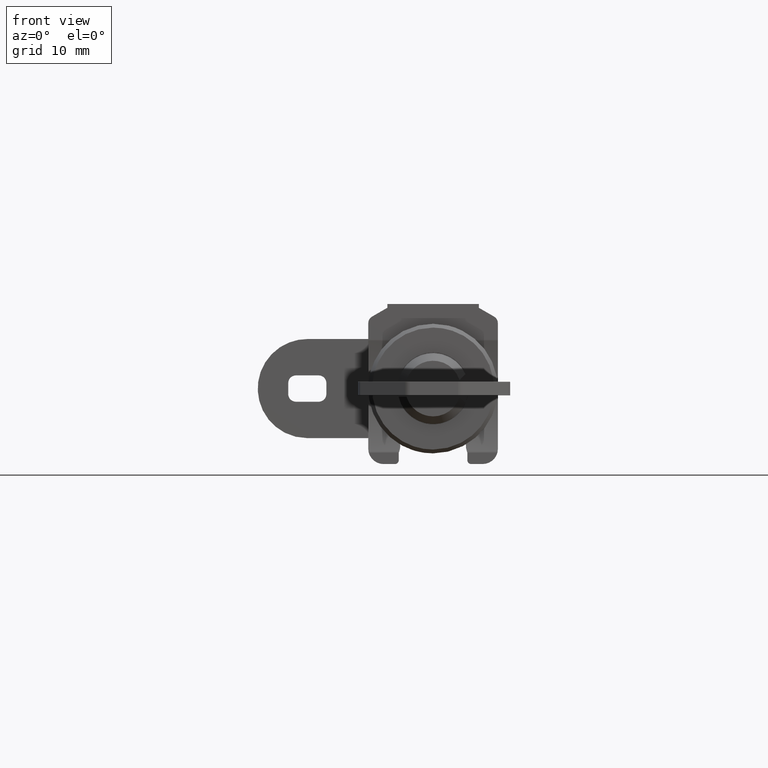
[diagram: clean part render]
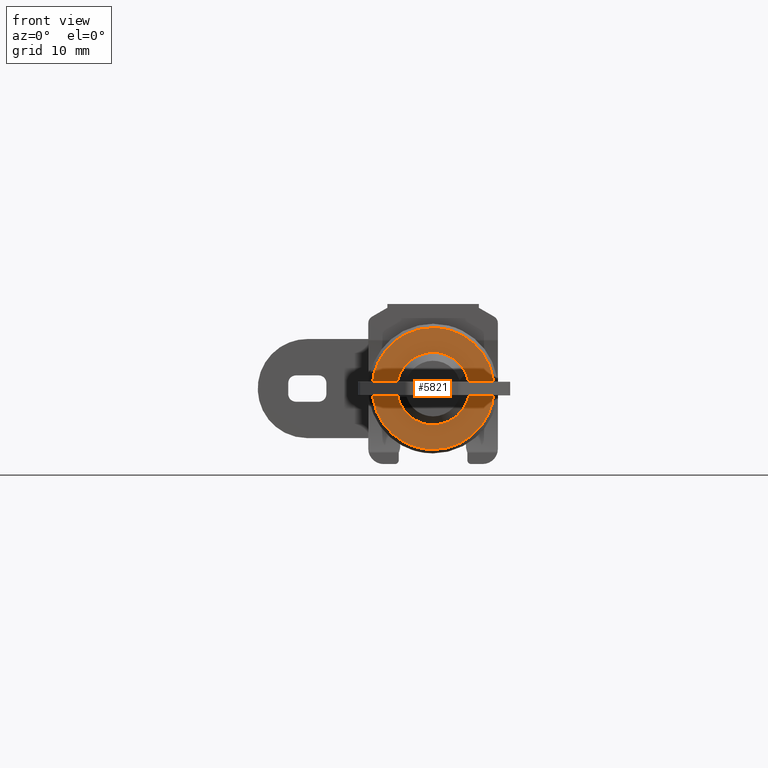
[diagram: same view with one face highlighted and labeled with its STEP entity id]
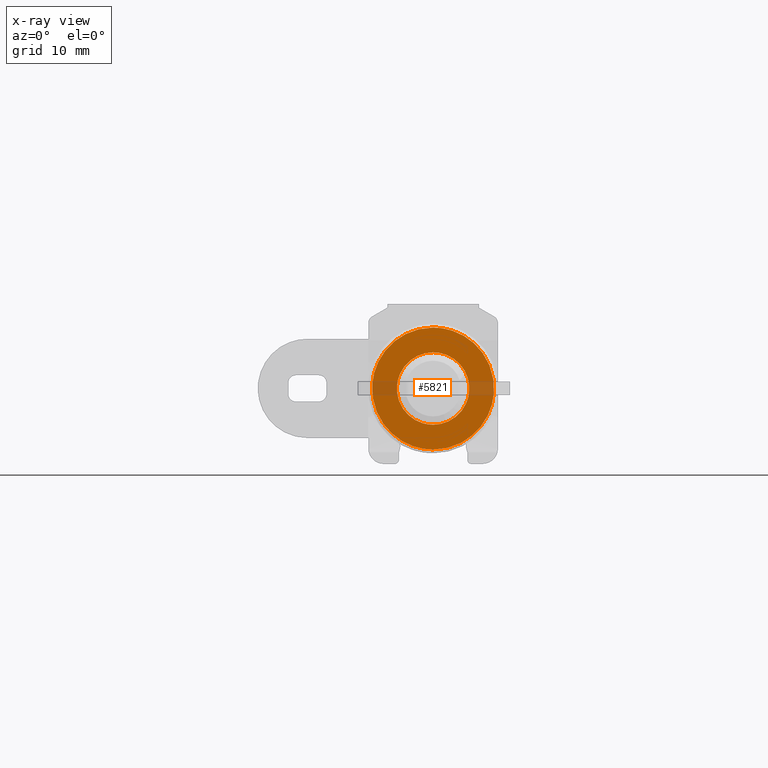
[diagram: x-ray of the same camera — body ghosted, the highlighted face saturated]
A machine part, front view. The second image highlights one B-rep face of the part: STEP entity #5821.
The next image is the same camera in x-ray: the body ghosted, the highlighted face saturated — about 9% of this face is hidden behind the body in this view.
In plain terms, the highlighted face is a freeform B-spline surface patch.
Its self-contained STEP definition (entity closure, byte-faithful):
#3328=CARTESIAN_POINT('',(-1.243454E-011,-4.716795250212233,-0.560662614596973));
#3329=VERTEX_POINT('',#3328);
#3330=CARTESIAN_POINT('',(-1.243450E-011,0.0,4.750000000150365));
#3331=VERTEX_POINT('',#3330);
#3332=CARTESIAN_POINT('',(-1.243454E-011,-4.716795250212233,-0.560662614596973));
#3333=CARTESIAN_POINT('',(-1.243450E-011,-4.750000000000000,-0.281314568325294));
#3334=CARTESIAN_POINT('',(-1.243450E-011,-4.750000000000000,1.503651E-010));
#3335=CARTESIAN_POINT('',(-1.243450E-011,-4.750000000000000,4.750000000150365));
#3336=CARTESIAN_POINT('',(-1.243450E-011,0.0,4.750000000150365));
#3344=(BOUNDED_CURVE()B_SPLINE_CURVE(2,(#3332,#3333,#3334,#3335,#3336),.UNSPECIFIED.,.F.,.U.)B_SPLINE_CURVE_WITH_KNOTS((3,2,3),(0.229562473506491,0.250000000000000,0.500000000000000),.UNSPECIFIED.)CURVE()GEOMETRIC_REPRESENTATION_ITEM()RATIONAL_B_SPLINE_CURVE((0.956026754169944,0.976055948322923,1.0,0.707106781186548,1.0))REPRESENTATION_ITEM(''));
#3345=EDGE_CURVE('',#3329,#3331,#3344,.T.);
#3347=CARTESIAN_POINT('',(-1.243445E-011,4.741140284503138,0.289980693751649));
#3348=VERTEX_POINT('',#3347);
#3349=CARTESIAN_POINT('',(-1.243450E-011,0.0,4.750000000150365));
#3350=CARTESIAN_POINT('',(-1.243450E-011,4.468353570772531,4.750000000150364));
#3351=CARTESIAN_POINT('',(-1.243445E-011,4.741140284503138,0.289980693751650));
#3359=(BOUNDED_CURVE()B_SPLINE_CURVE(2,(#3349,#3350,#3351),.UNSPECIFIED.,.F.,.U.)B_SPLINE_CURVE_WITH_KNOTS((3,3),(0.500000000000000,0.739332952720643),.UNSPECIFIED.)CURVE()GEOMETRIC_REPRESENTATION_ITEM()RATIONAL_B_SPLINE_CURVE((1.0,0.719604004438092,0.976072021267191))REPRESENTATION_ITEM(''));
#3360=EDGE_CURVE('',#3331,#3348,#3359,.T.);
#3427=CARTESIAN_POINT('',(-1.243450E-011,0.0,-4.749999999849635));
#3428=VERTEX_POINT('',#3427);
#3429=CARTESIAN_POINT('',(-1.243450E-011,0.0,-4.749999999849635));
#3430=CARTESIAN_POINT('',(-1.243450E-011,-4.218828998038886,-4.749999999849635));
#3431=CARTESIAN_POINT('',(-1.243454E-011,-4.716795250212233,-0.560662614596973));
#3439=(BOUNDED_CURVE()B_SPLINE_CURVE(2,(#3429,#3430,#3431),.UNSPECIFIED.,.F.,.U.)B_SPLINE_CURVE_WITH_KNOTS((3,3),(0.0,0.229562473506491),.UNSPECIFIED.)CURVE()GEOMETRIC_REPRESENTATION_ITEM()RATIONAL_B_SPLINE_CURVE((1.0,0.731050832863624,0.956026754169944))REPRESENTATION_ITEM(''));
#3440=EDGE_CURVE('',#3428,#3329,#3439,.T.);
#3474=CARTESIAN_POINT('',(-1.243445E-011,4.741140284503138,0.289980693751650));
#3475=CARTESIAN_POINT('',(-1.243450E-011,4.750000000000000,0.145125756996157));
#3476=CARTESIAN_POINT('',(-1.243450E-011,4.750000000000000,1.503651E-010));
#3477=CARTESIAN_POINT('',(-1.243450E-011,4.750000000000000,-4.749999999849635));
#3478=CARTESIAN_POINT('',(-1.243450E-011,0.0,-4.749999999849635));
#3486=(BOUNDED_CURVE()B_SPLINE_CURVE(2,(#3474,#3475,#3476,#3477,#3478),.UNSPECIFIED.,.F.,.U.)B_SPLINE_CURVE_WITH_KNOTS((3,2,3),(0.739332952720643,0.750000000000000,1.0),.UNSPECIFIED.)CURVE()GEOMETRIC_REPRESENTATION_ITEM()RATIONAL_B_SPLINE_CURVE((0.976072021267191,0.987502776748456,1.0,0.707106781186548,1.0))REPRESENTATION_ITEM(''));
#3487=EDGE_CURVE('',#3348,#3428,#3486,.T.);
#3857=CARTESIAN_POINT('',(-1.253397E-011,-3.552714E-014,7.999999999995588));
#3858=VERTEX_POINT('',#3857);
#3859=CARTESIAN_POINT('',(3.510789E-011,7.975338669879555,0.627672766188687));
#3860=VERTEX_POINT('',#3859);
#3861=CARTESIAN_POINT('',(-1.253397E-011,-3.552714E-014,7.999999999995588));
#3862=CARTESIAN_POINT('',(-1.253397E-011,7.395123932587146,7.999999999995588));
#3863=CARTESIAN_POINT('',(3.510789E-011,7.975338669879555,0.627672766188687));
#3871=(BOUNDED_CURVE()B_SPLINE_CURVE(2,(#3861,#3862,#3863),.UNSPECIFIED.,.F.,.U.)B_SPLINE_CURVE_WITH_KNOTS((3,3),(0.0,0.236331300617182),.UNSPECIFIED.)CURVE()GEOMETRIC_REPRESENTATION_ITEM()RATIONAL_B_SPLINE_CURVE((1.0,0.723120658623456,0.969723356139291))REPRESENTATION_ITEM(''));
#3872=EDGE_CURVE('',#3858,#3860,#3871,.T.);
#3874=CARTESIAN_POINT('',(3.510742E-011,-7.975338669879625,-0.627672766188687));
#3875=VERTEX_POINT('',#3874);
#3876=CARTESIAN_POINT('',(3.510742E-011,-7.975338669879625,-0.627672766188687));
#3877=CARTESIAN_POINT('',(-1.253397E-011,-7.999999999995624,-0.314320856425399));
#3878=CARTESIAN_POINT('',(-1.253397E-011,-7.999999999995623,0.0));
#3879=CARTESIAN_POINT('',(-1.253397E-011,-7.999999999995622,7.999999999995588));
#3880=CARTESIAN_POINT('',(-1.253397E-011,-3.552714E-014,7.999999999995588));
#3888=(BOUNDED_CURVE()B_SPLINE_CURVE(2,(#3876,#3877,#3878,#3879,#3880),.UNSPECIFIED.,.F.,.U.)B_SPLINE_CURVE_WITH_KNOTS((3,2,3),(0.736331300617182,0.750000000000000,1.0),.UNSPECIFIED.)CURVE()GEOMETRIC_REPRESENTATION_ITEM()RATIONAL_B_SPLINE_CURVE((0.969723356139291,0.983986122563092,1.0,0.707106781186547,1.0))REPRESENTATION_ITEM(''));
#3889=EDGE_CURVE('',#3875,#3858,#3888,.T.);
#3929=CARTESIAN_POINT('',(-1.253397E-011,-3.552714E-014,-7.999999999995588));
#3930=VERTEX_POINT('',#3929);
#3931=CARTESIAN_POINT('',(3.510789E-011,7.975338669879555,0.627672766188687));
#3932=CARTESIAN_POINT('',(-1.253397E-011,7.999999999995555,0.314320856425399));
#3933=CARTESIAN_POINT('',(-1.253397E-011,7.999999999995554,0.0));
#3934=CARTESIAN_POINT('',(-1.253397E-011,7.999999999995555,-7.999999999995588));
#3935=CARTESIAN_POINT('',(-1.253397E-011,-3.552714E-014,-7.999999999995588));
#3943=(BOUNDED_CURVE()B_SPLINE_CURVE(2,(#3931,#3932,#3933,#3934,#3935),.UNSPECIFIED.,.F.,.U.)B_SPLINE_CURVE_WITH_KNOTS((3,2,3),(0.236331300617182,0.250000000000000,0.500000000000000),.UNSPECIFIED.)CURVE()GEOMETRIC_REPRESENTATION_ITEM()RATIONAL_B_SPLINE_CURVE((0.969723356139291,0.983986122563092,1.0,0.707106781186547,1.0))REPRESENTATION_ITEM(''));
#3944=EDGE_CURVE('',#3860,#3930,#3943,.T.);
#3950=CARTESIAN_POINT('',(-1.253397E-011,-3.552714E-014,-7.999999999995588));
#3951=CARTESIAN_POINT('',(-1.253397E-011,-7.395123932587256,-7.999999999995588));
#3952=CARTESIAN_POINT('',(3.510742E-011,-7.975338669879625,-0.627672766188687));
#3960=(BOUNDED_CURVE()B_SPLINE_CURVE(2,(#3950,#3951,#3952),.UNSPECIFIED.,.F.,.U.)B_SPLINE_CURVE_WITH_KNOTS((3,3),(0.500000000000000,0.736331300617183),.UNSPECIFIED.)CURVE()GEOMETRIC_REPRESENTATION_ITEM()RATIONAL_B_SPLINE_CURVE((1.0,0.723120658623454,0.969723356139293))REPRESENTATION_ITEM(''));
#3961=EDGE_CURVE('',#3930,#3875,#3960,.T.);
#5804=CARTESIAN_POINT('',(-6.266987E-012,-8.796758021809868,8.799199968984043));
#5805=CARTESIAN_POINT('',(-6.266987E-012,-8.796758021809868,-8.799200398137486));
#5806=CARTESIAN_POINT('',(-6.266987E-012,8.796758450963241,8.799199968984043));
#5807=CARTESIAN_POINT('',(-6.266987E-012,8.796758450963241,-8.799200398137486));
#5808=B_SPLINE_SURFACE_WITH_KNOTS('',1,1,((#5804,#5806),(#5805,#5807)),.UNSPECIFIED.,.F.,.F.,.U.,(2,2),(2,2),(0.0,17.598400367121531),(0.0,17.593516472773111),.UNSPECIFIED.);
#5809=ORIENTED_EDGE('',*,*,#3872,.T.);
#5810=ORIENTED_EDGE('',*,*,#3944,.T.);
#5811=ORIENTED_EDGE('',*,*,#3961,.T.);
#5812=ORIENTED_EDGE('',*,*,#3889,.T.);
#5813=EDGE_LOOP('',(#5809,#5810,#5811,#5812));
#5814=FACE_OUTER_BOUND('',#5813,.T.);
#5815=ORIENTED_EDGE('',*,*,#3360,.F.);
#5816=ORIENTED_EDGE('',*,*,#3345,.F.);
#5817=ORIENTED_EDGE('',*,*,#3440,.F.);
#5818=ORIENTED_EDGE('',*,*,#3487,.F.);
#5819=EDGE_LOOP('',(#5815,#5816,#5817,#5818));
#5820=FACE_BOUND('',#5819,.T.);
#5821=ADVANCED_FACE('',(#5814,#5820),#5808,.F.);